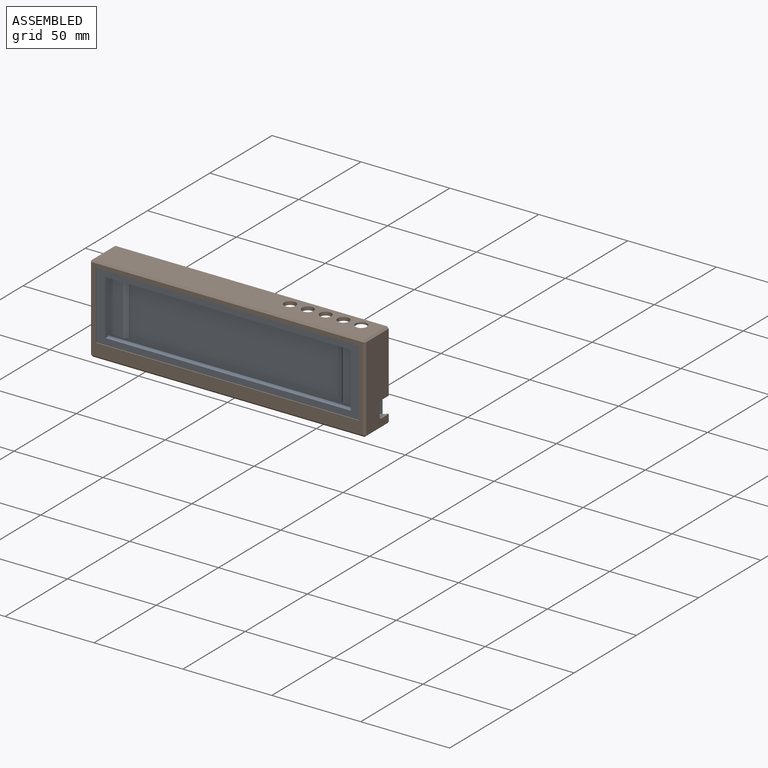
[diagram: assembled view]
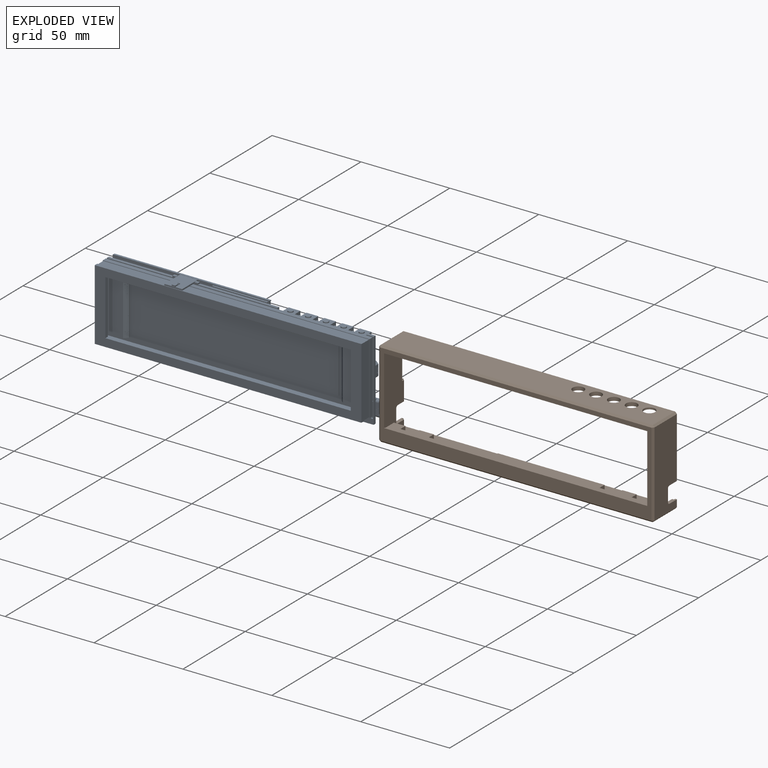
[diagram: exploded view]
GUIDED TOUR — FREECAD ASSEMBLY "CK3B-II"

This assembly has 2 components, labeled P0..P1 below (a component is one placed body or linked part; the same part can appear more than once), held together by 0 modeled joints plus 1 derived contact edge. A joint is a constraint between two components; its type names the relative motion it leaves free:
  CONTACT — a derived adjacency edge — the two components touch in the source model (clearance under 2% of the assembly's diagonal); it is measured from the geometry, not a modeled constraint.
Axis/direction vectors are unit vectors and 'through' points are millimeter coordinates, both in the assembly's world frame.

MATES
  1. CONTACT "contact_0_1": P0 <-> P1, contact direction (1.000, 0.000, 0.000) through (-75.07, 12.11, -0.88) mm (derived from contact, not a modeled constraint)

ASSEMBLY ORDER
  1. P0 — the base component [order heuristic]
  2. P1 [order heuristic]
Order-tag legend:
  [order heuristic] — this assembly is geometrically interlocked (no collision-free removal order exists), so components are listed in mate-graph order; insertion feasibility is not verified.

Of the 2 components, 1 carries a construction recipe — the FreeCAD feature program (sketches with constraints, then the solid features that consume them) that regenerates the part from scratch, quoted from this document or from the linked companion document it references; the rest are supplied as boundary geometry only. The tour below walks the components in assembly order: each is shown spotlighted twice — in the assembled view, then in the exploded view, where a leader line traces a displaced component back to its assembled socket (components that stay in place when exploded have no leader line; saturated green if recipe-attached, orange if geometry-only; every other component desaturated gray) — followed by its recipe or geometry summary and the mates that hold it.
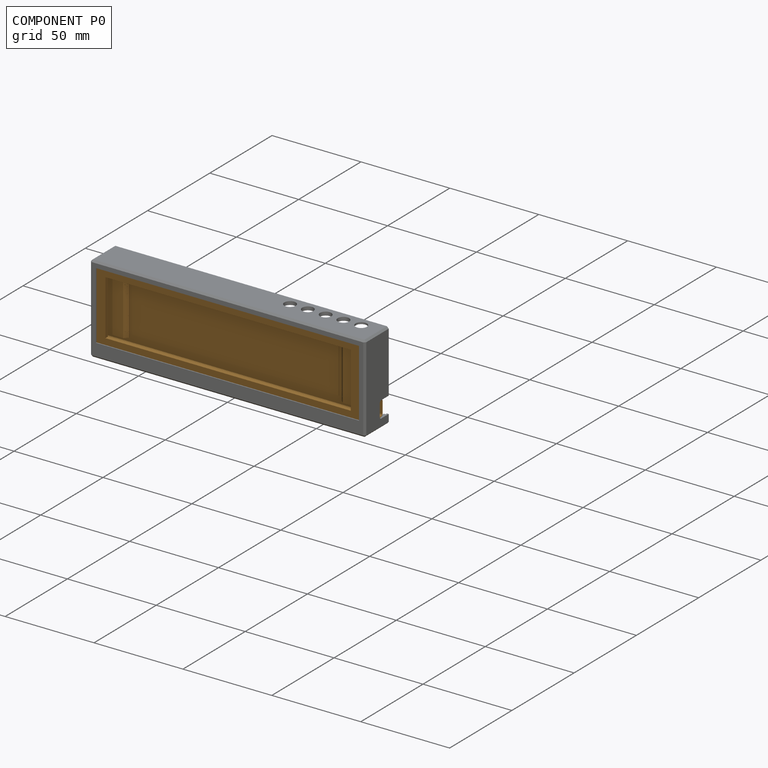
[diagram: component P0 — assembled]
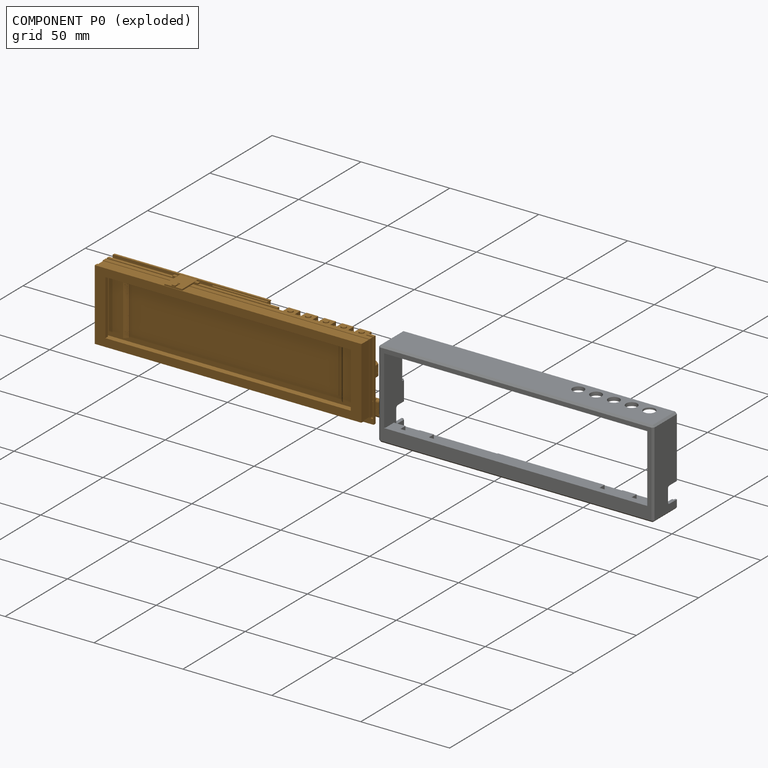
[diagram: component P0 — exploded]
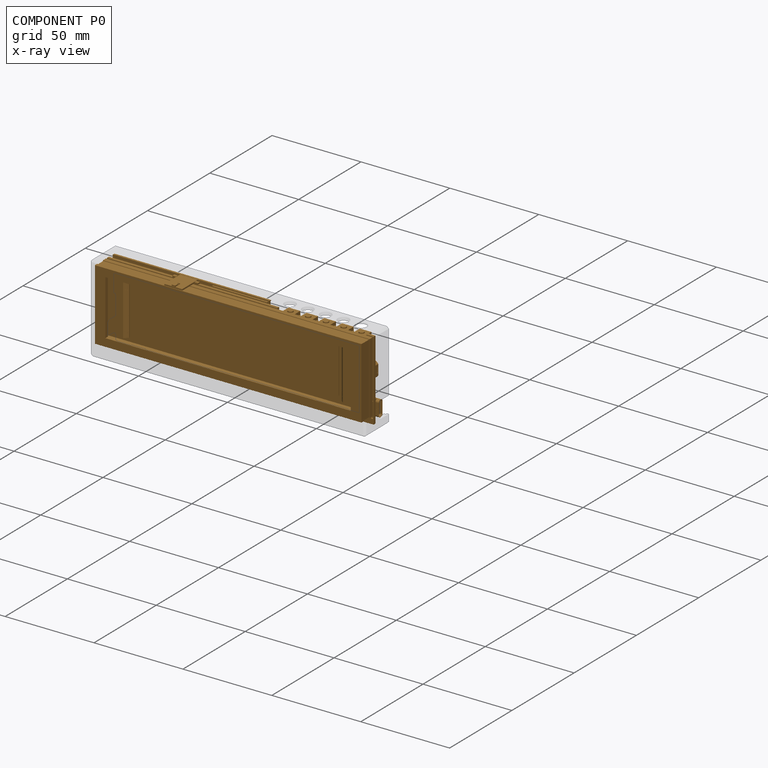
[diagram: component P0 — x-ray view]
COMPONENT P0 — geometry summary ("Electronic"; no construction recipe available for this part):
  bounding box: 153.2 x 46.3 x 19.5 mm
  tessellated surface: 1,090,920 triangles
  volume: 42087 mm^3 (30% of its bounding box)
Held by: resting contact with P1 (derived edge).
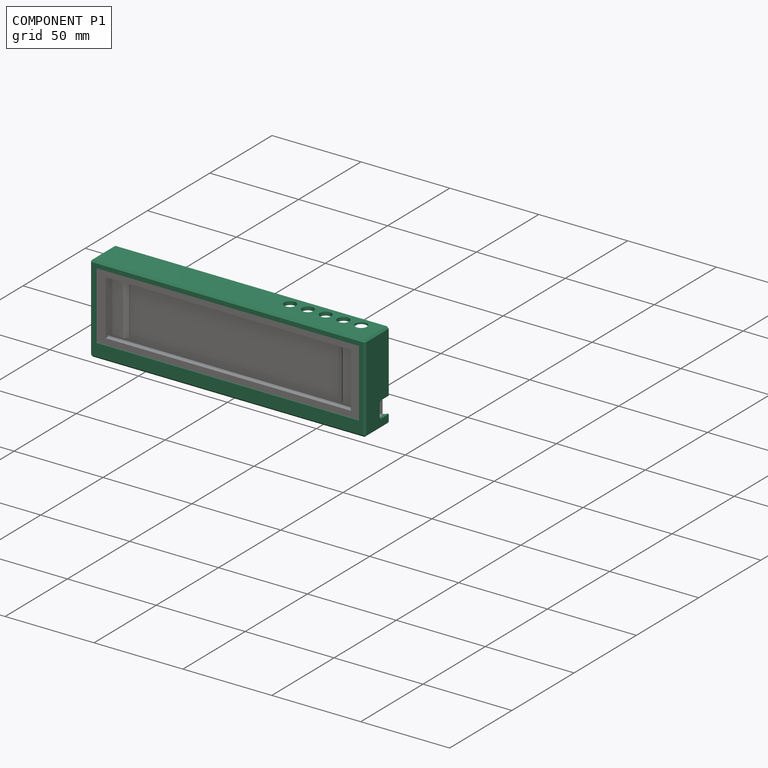
[diagram: component P1 — assembled]
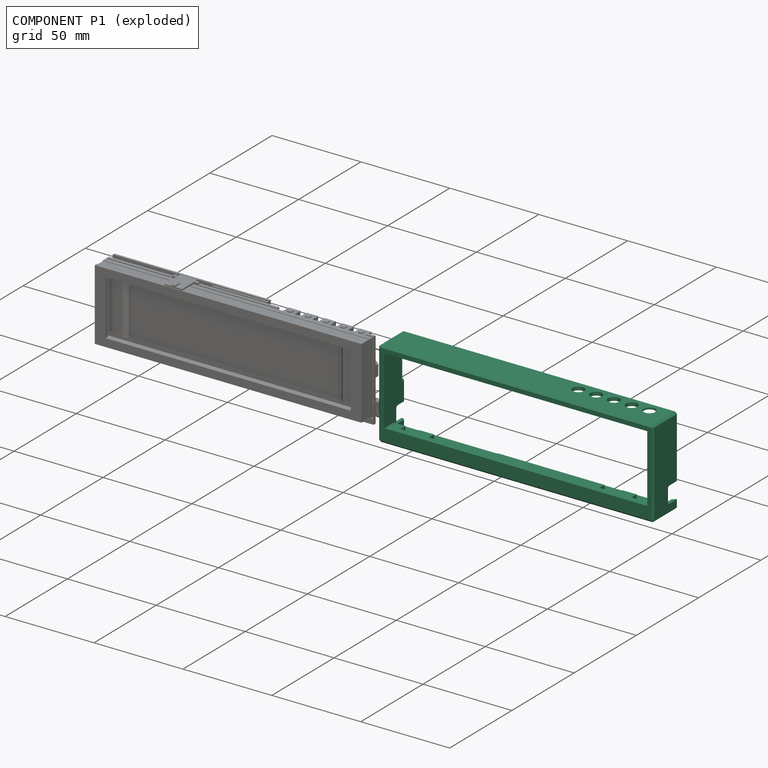
[diagram: component P1 — exploded]
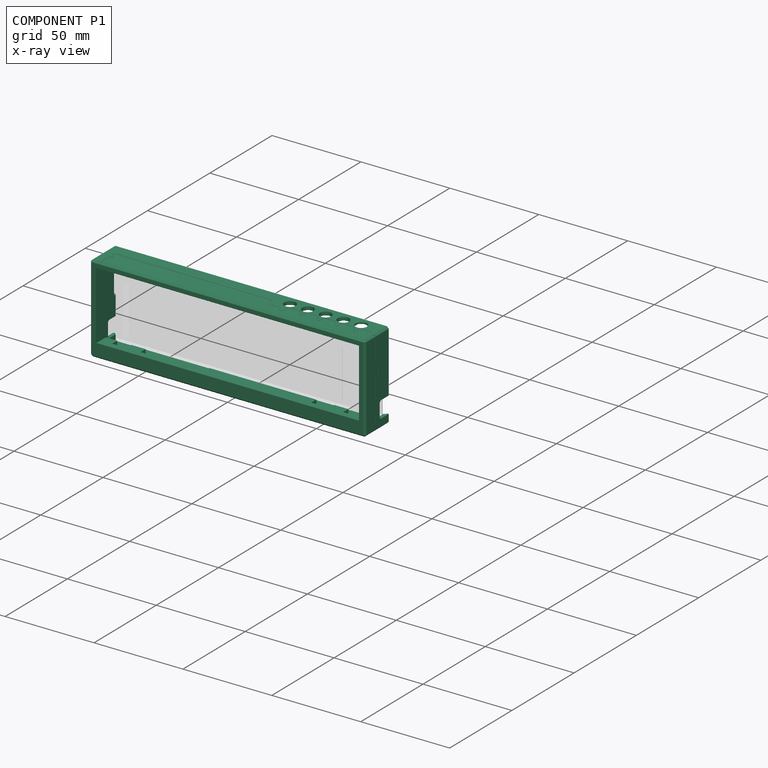
[diagram: component P1 — x-ray view]
COMPONENT P1 — recipe-attached ("Shield", modeled in this document).
Held by: resting contact with P0 (derived edge).
Construction recipe (the document's own serialized feature program — sketch geometry with constraints, then the solid features built on it; lengths are millimeters unless a unit is written):

FEATURE [Sketcher::SketchObject] Sketch001
  FullyConstrained = true
  MapMode = 5
  Placement = pos=(0,0,0) rot=(0.57735,0.57735,0.57735;2.0944rad)
  Support = -> [YZ_Plane002]
  TreeRank = 52
  sketch-geometry (5):
    g0: LineSegment StartX=19 StartY=-7 StartZ=0 EndX=19 EndY=42.4 EndZ=0
    g1: LineSegment StartX=0 StartY=42.4 StartZ=0 EndX=0 EndY=0 EndZ=0
    g2: LineSegment StartX=0 StartY=42.4 StartZ=0 EndX=19 EndY=42.4 EndZ=0
    g3: LineSegment StartX=0 StartY=0 StartZ=0 EndX=0 EndY=-7 EndZ=0
    g4: LineSegment StartX=0 StartY=-7 StartZ=0 EndX=19 EndY=-7 EndZ=0
  constraints (14):
    c: Distance(g1) = 42.4
    c: Coincident(g2,g1)
    c: Coincident(g2,g0)
    c: Horizontal(g2)
    c: Vertical(g1)
    c: Vertical(g0)
    c: Coincident(g1,g-1)
    c: DistanceX(g2,g2) = 19
    c: Coincident(g3,g1)
    c: Vertical(g3)
    c: DistanceY(g3,g3) = 7
    c: Coincident(g4,g3)
    c: Coincident(g4,g0)
    c: Horizontal(g4)
FEATURE [PartDesign::Pad] Pad  label="体"
  ClaimChildren = false
  Direction = (1,1,1)
  Fit = 0
  FitJoin = 0
  InnerFit = 0
  InnerFitJoin = 0
  InnerTaperAngle = 0
  InnerTaperAngleRev = 0
  Length = 154.8
  Length2 = 100
  Linearize = true
  Midplane = true
  NewSolid = false
  Placement = pos=(0,0,0) rot=(0.57735,0.57735,0.57735;2.0944rad)
  Profile = -> Sketch001
  Suppress = false
  TreeRank = 53
  Type = 0
  _ProfileBasedVersion = 1
FEATURE [Sketcher::SketchObject] Sketch002
  AttachmentOffset = pos=(0,0,-0.5) rot=(0,0,1;0rad)
  FullyConstrained = true
  MapMode = 5
  Placement = pos=(2e-16,0.5,-1e-16) rot=(-0.57735,-0.57735,0.57735;4.18879rad)
  Support = -> [Pad]
  TreeRank = 54
  sketch-geometry (4):
    g0: LineSegment StartX=0 StartY=75 StartZ=0 EndX=-40 EndY=75 EndZ=0
    g1: LineSegment StartX=-40 StartY=75 StartZ=0 EndX=-40 EndY=-75 EndZ=0
    g2: LineSegment StartX=-40 StartY=-75 StartZ=0 EndX=0 EndY=-75 EndZ=0
    g3: LineSegment StartX=0 StartY=-75 StartZ=0 EndX=0 EndY=75 EndZ=0
  constraints (11):
    c: Coincident(g0,g1)
    c: Vertical(g1)
    c: Coincident(g1,g2)
    c: Horizontal(g2)
    c: Coincident(g2,g3)
    c: Coincident(g3,g0)
    c: Horizontal(g0)
    c: DistanceX(g0,g0) = 40
    c: PointOnObject(g-1,g3)
    c: DistanceY(g3,g3) = 150
    c: Symmetric(g0,g2,g-1)
FEATURE [PartDesign::Pocket] Pocket  label="屏幕挖空"
  BaseFeature = -> Pad
  ClaimChildren = false
  Fit = 0
  FitJoin = 0
  InnerFit = 0
  InnerFitJoin = 0
  InnerTaperAngle = 0
  InnerTaperAngleRev = 0
  Length = 5
  Length2 = 100
  Linearize = true
  NewSolid = false
  Placement = pos=(0,0,0) rot=(0.57735,0.57735,0.57735;2.0944rad)
  Profile = -> Sketch002
  Suppress = false
  TreeRank = 55
  Type = 1
  _ProfileBasedVersion = 1
FEATURE [Sketcher::SketchObject] Sketch003
  AttachmentOffset = pos=(0,0,-6) rot=(0,0,1;0rad)
  ExternalGeometry = -> [Pocket]
  FullyConstrained = true
  MapMode = 5
  Placement = pos=(2.3e-15,6,-1e-15) rot=(-0.57735,-0.57735,0.57735;4.18879rad)
  Support = -> [Pad]
  TreeRank = 56
  sketch-geometry (24):
    g0: LineSegment StartX=0 StartY=69 StartZ=0 EndX=4 EndY=69 EndZ=0
    g1: LineSegment StartX=4 StartY=69 StartZ=0 EndX=4 EndY=61 EndZ=0
    g2: LineSegment StartX=4 StartY=61 StartZ=0 EndX=0 EndY=61 EndZ=0
    g3: LineSegment StartX=0 StartY=61 StartZ=0 EndX=0 EndY=69 EndZ=0
    g4: LineSegment StartX=0 StartY=53 StartZ=0 EndX=4 EndY=53 EndZ=0
    g5: LineSegment StartX=4 StartY=53 StartZ=0 EndX=4 EndY=43 EndZ=0
    g6: LineSegment StartX=4 StartY=43 StartZ=0 EndX=0 EndY=43 EndZ=0
    g7: LineSegment StartX=0 StartY=43 StartZ=0 EndX=0 EndY=53 EndZ=0
    g8: LineSegment StartX=0 StartY=-17 StartZ=0 EndX=4 EndY=-17 EndZ=0
    g9: LineSegment StartX=4 StartY=-17 StartZ=0 EndX=4 EndY=-53 EndZ=0
    g10: LineSegment StartX=4 StartY=-53 StartZ=0 EndX=0 EndY=-53 EndZ=0
    g11: LineSegment StartX=0 StartY=-53 StartZ=0 EndX=0 EndY=-17 EndZ=0
    g12: LineSegment StartX=0 StartY=-61 StartZ=0 EndX=4 EndY=-61 EndZ=0
    g13: LineSegment StartX=4 StartY=-61 StartZ=0 EndX=4 EndY=-69 EndZ=0
    g14: LineSegment StartX=4 StartY=-69 StartZ=0 EndX=0 EndY=-69 EndZ=0
    g15: LineSegment StartX=0 StartY=-69 StartZ=0 EndX=0 EndY=-61 EndZ=0
    g16: LineSegment StartX=-41.4 StartY=69 StartZ=0 EndX=-40 EndY=69 EndZ=0
    g17: LineSegment StartX=-40 StartY=69 StartZ=0 EndX=-40 EndY=61 EndZ=0
    g18: LineSegment StartX=-40 StartY=61 StartZ=0 EndX=-41.4 EndY=61 EndZ=0
    g19: LineSegment StartX=-41.4 StartY=61 StartZ=0 EndX=-41.4 EndY=69 EndZ=0
    g20: LineSegment StartX=-41.4 StartY=-61 StartZ=0 EndX=-40 EndY=-61 EndZ=0
    g21: LineSegment StartX=-40 StartY=-61 StartZ=0 EndX=-40 EndY=-69 EndZ=0
    g22: LineSegment StartX=-40 StartY=-69 StartZ=0 EndX=-41.4 EndY=-69 EndZ=0
    g23: LineSegment StartX=-41.4 StartY=-69 StartZ=0 EndX=-41.4 EndY=-61 EndZ=0
  constraints (72):
    c: Coincident(g0,g1)
    c: Coincident(g1,g2)
    c: Coincident(g2,g3)
    c: Coincident(g3,g0)
    c: Horizontal(g0)
    c: Horizontal(g2)
    c: Vertical(g1)
    c: Vertical(g3)
    c: PointOnObject(g-1,g3)
    c: Coincident(g4,g5)
    c: Coincident(g5,g6)
    c: Coincident(g6,g7)
    c: Coincident(g7,g4)
    c: Horizontal(g4)
    c: Horizontal(g6)
    c: Vertical(g5)
    c: Vertical(g7)
    c: Coincident(g8,g9)
    c: Coincident(g9,g10)
    c: Coincident(g10,g11)
    c: Coincident(g11,g8)
    c: Horizontal(g8)
    c: Horizontal(g10)
    c: Vertical(g9)
    c: Vertical(g11)
    c: Coincident(g12,g13)
    c: Coincident(g13,g14)
    c: Coincident(g14,g15)
    c: Coincident(g15,g12)
    c: Horizontal(g12)
    c: Horizontal(g14)
    c: Vertical(g13)
    c: Vertical(g15)
    c: PointOnObject(g-1,g11)
    c: PointOnObject(g-1,g15)
    c: PointOnObject(g-1,g7)
    c: Vertical(g1,g4)
    c: Vertical(g5,g8)
    c: Vertical(g9,g12)
    c: Distance(g0,g-3) = 6
    c: DistanceY(g3,g3) = 8
    c: DistanceY(g4,g2) = 8
    c: DistanceY(g7,g7) = 10
    c: DistanceX(g0,g0) = 4
    c: Distance(g14,g-4) = 6
    c: DistanceY(g15,g15) = 8
    c: DistanceY(g12,g10) = 8
    c: DistanceY(g11,g11) = 36
    c: Coincident(g16,g17)
    c: Coincident(g17,g18)
    c: Coincident(g18,g19)
    c: Coincident(g19,g16)
    c: Horizontal(g16)
    c: Horizontal(g18)
    c: Vertical(g17)
    c: Vertical(g19)
    c: Coincident(g20,g21)
    c: Coincident(g21,g22)
    c: Coincident(g22,g23)
    c: Coincident(g23,g20)
    c: Horizontal(g20)
    c: Horizontal(g22)
    c: Vertical(g21)
    c: Vertical(g23)
    c: PointOnObject(g16,g-5)
    c: DistanceX(g16,g16) = 1.4
    c: Horizontal(g16,g0)
    c: Horizontal(g17,g2)
    c: Vertical(g20,g17)
    c: Vertical(g20,g18)
    c: Horizontal(g20,g12)
    c: Horizontal(g21,g14)
FEATURE [Sketcher::SketchObject] Sketch004
  AttachmentOffset = pos=(0,0,-10) rot=(0,0,1;0rad)
  FullyConstrained = true
  MapMode = 5
  Placement = pos=(3.9e-15,10,-1.7e-15) rot=(-0.57735,-0.57735,0.57735;4.18879rad)
  Support = -> [Pad]
  TreeRank = 58
  sketch-geometry (4):
    g0: LineSegment StartX=0 StartY=75 StartZ=0 EndX=4.8 EndY=75 EndZ=0
    g1: LineSegment StartX=4.8 StartY=75 StartZ=0 EndX=4.8 EndY=-75 EndZ=0
    g2: LineSegment StartX=4.8 StartY=-75 StartZ=0 EndX=0 EndY=-75 EndZ=0
    g3: LineSegment StartX=0 StartY=-75 StartZ=0 EndX=0 EndY=75 EndZ=0
  constraints (11):
    c: Coincident(g0,g1)
    c: Coincident(g1,g2)
    c: Coincident(g2,g3)
    c: Coincident(g3,g0)
    c: Horizontal(g0)
    c: Horizontal(g2)
    c: Vertical(g1)
    c: PointOnObject(g-1,g3)
    c: Symmetric(g0,g2,g-1)
    c: DistanceY(g3,g3) = 150
    c: DistanceX(g0,g0) = 4.8
FEATURE [Sketcher::SketchObject] Sketch005
  ExternalGeometry = -> [Pocket]
  FullyConstrained = true
  MapMode = 5
  Placement = pos=(2e-16,0.5,-1e-16) rot=(0.57735,0.57735,0.57735;4.18879rad)
  Support = -> [Pocket]
  TreeRank = 60
  sketch-geometry (4):
    g0: LineSegment StartX=1 StartY=74 StartZ=0 EndX=39 EndY=74 EndZ=0
    g1: LineSegment StartX=39 StartY=74 StartZ=0 EndX=39 EndY=-74 EndZ=0
    g2: LineSegment StartX=39 StartY=-74 StartZ=0 EndX=1 EndY=-74 EndZ=0
    g3: LineSegment StartX=1 StartY=-74 StartZ=0 EndX=1 EndY=74 EndZ=0
  constraints (12):
    c: Coincident(g0,g1)
    c: Coincident(g1,g2)
    c: Coincident(g2,g3)
    c: Coincident(g3,g0)
    c: Horizontal(g0)
    c: Horizontal(g2)
    c: Vertical(g1)
    c: Vertical(g3)
    c: Distance(g0,g-3) = 1
    c: DistanceX(g-2,g0) = 1
    c: Distance(g1,g-5) = 1
    c: Distance(g1,g-4) = 1
FEATURE [PartDesign::Pocket] Pocket003  label="屏幕正面挖空"
  BaseFeature = -> Pocket
  ClaimChildren = false
  Fit = 0
  FitJoin = 0
  InnerFit = 0
  InnerFitJoin = 0
  InnerTaperAngle = 0
  InnerTaperAngleRev = 0
  Length = 5
  Length2 = 100
  Linearize = true
  NewSolid = false
  Placement = pos=(0,0,0) rot=(0.57735,0.57735,0.57735;2.0944rad)
  Profile = -> Sketch005
  Suppress = false
  TreeRank = 61
  Type = 1
  _ProfileBasedVersion = 1
FEATURE [Sketcher::SketchObject] Sketch007
  FullyConstrained = true
  MapMode = 5
  Placement = pos=(0,0,0) rot=(0.57735,0.57735,0.57735;2.0944rad)
  Support = -> [YZ_Plane002]
  TreeRank = 64
  sketch-geometry (7):
    g0: LineSegment StartX=13 StartY=7.35 StartZ=0 EndX=21.8 EndY=7.35 EndZ=0
    g1: LineSegment StartX=21.8 StartY=7.35 StartZ=0 EndX=21.8 EndY=-1.95 EndZ=0
    g2: LineSegment StartX=21.8 StartY=-1.95 StartZ=0 EndX=13 EndY=-1.95 EndZ=0
    g3: LineSegment StartX=11.8 StartY=6.15 StartZ=0 EndX=11.8 EndY=-0.75 EndZ=0
    g4: ArcOfCircle CenterX=13 CenterY=6.15 CenterZ=0 NormalX=0 NormalY=0 NormalZ=1 AngleXU=0 Radius=1.2 StartAngle=1.5708 EndAngle=3.14159
    g5: ArcOfCircle CenterX=13 CenterY=-0.75 CenterZ=0 NormalX=0 NormalY=0 NormalZ=1 AngleXU=0 Radius=1.2 StartAngle=3.14159 EndAngle=4.71239
    g6: GeomPoint [constr] X=21.8 Y=2.7 Z=0
  constraints (17):
    c: Horizontal(g0)
    c: Coincident(g0,g1)
    c: Vertical(g1)
    c: Coincident(g1,g2)
    c: Horizontal(g2)
    c: Vertical(g3)
    c: Tangent(g5,g3) = -1.5708
    c: Tangent(g4,g0) = 1.5708
    c: Tangent(g5,g2) = 1.5708
    c: Tangent(g4,g3) = -1.5708
    c: Equal(g4,g5)
    c: DistanceY(g1,g1) = 9.3
    c: Radius(g4) = 1.2
    c: Distance(g-1,g3) = 11.8
    c: Symmetric(g0,g1,g6)
    c: DistanceY(g-1,g6) = 2.7
    c: Distance(g1,g3) = 10
FEATURE [Sketcher::SketchObject] Sketch010
  ExternalGeometry = -> [Pocket]
  FullyConstrained = true
  MapMode = 5
  Placement = pos=(-4.4e-15,1.56e-14,40) rot=(0.707107,0.707107,0;3.14159rad)
  Support = -> [Pocket]
  TreeRank = 70
  sketch-geometry (5):
    g0: Circle CenterX=13.2 CenterY=66 CenterZ=0 NormalX=0 NormalY=0 NormalZ=1 AngleXU=0 Radius=3.2
    g1: Circle CenterX=13.2 CenterY=56 CenterZ=0 NormalX=0 NormalY=0 NormalZ=1 AngleXU=0 Radius=3.2
    g2: Circle CenterX=13.2 CenterY=46 CenterZ=0 NormalX=0 NormalY=0 NormalZ=1 AngleXU=0 Radius=3.2
    g3: Circle CenterX=13.2 CenterY=36 CenterZ=0 NormalX=0 NormalY=0 NormalZ=1 AngleXU=0 Radius=3.2
    g4: Circle CenterX=13.2 CenterY=26 CenterZ=0 NormalX=0 NormalY=0 NormalZ=1 AngleXU=0 Radius=3.2
  constraints (15):
    c: Distance(g0,g-3) = 9
    c: DistanceX(g-2,g0) = 13.2
    c: Diameter(g0) = 6.4
    c: Equal(g0,g1)
    c: Equal(g1,g2)
    c: Equal(g2,g3)
    c: Equal(g3,g4)
    c: Vertical(g0,g1)
    c: Vertical(g1,g2)
    c: Vertical(g2,g3)
    c: Vertical(g3,g4)
    c: DistanceY(g1,g0) = 10
    c: DistanceY(g2,g1) = 10
    c: DistanceY(g3,g2) = 10
    c: DistanceY(g4,g3) = 10
FEATURE [Sketcher::SketchObject] Sketch016
  FullyConstrained = true
  MapMode = 5
  Placement = pos=(-77.4,1.7e-14,-1.7e-14) rot=(0.57735,0.57735,-0.57735;4.18879rad)
  Support = -> [Pad]
  TreeRank = 108
  sketch-geometry (4):
    g0: LineSegment StartX=16.6 StartY=-18.2 StartZ=0 EndX=21.6 EndY=-18.2 EndZ=0
    g1: LineSegment StartX=21.6 StartY=-18.2 StartZ=0 EndX=21.6 EndY=-30.2 EndZ=0
    g2: LineSegment StartX=21.6 StartY=-30.2 StartZ=0 EndX=16.6 EndY=-30.2 EndZ=0
    g3: LineSegment StartX=16.6 StartY=-30.2 StartZ=0 EndX=16.6 EndY=-18.2 EndZ=0
  constraints (12):
    c: Coincident(g0,g1)
    c: Coincident(g1,g2)
    c: Coincident(g2,g3)
    c: Coincident(g3,g0)
    c: Horizontal(g0)
    c: Horizontal(g2)
    c: Vertical(g1)
    c: Vertical(g3)
    c: DistanceY(g-1,g0) = -18.2
    c: DistanceX(g-1,g0) = 16.6
    c: DistanceX(g2,g2) = 5
    c: DistanceY(g1,g1) = 12
FEATURE [Sketcher::SketchObject] Sketch021
  ExternalGeometry = -> [Pocket]
  FullyConstrained = true
  MapMode = 5
  Placement = pos=(2e-16,0.5,-1e-16) rot=(0.57735,0.57735,0.57735;4.18879rad)
  Support = -> [Pocket]
  TreeRank = 131
  sketch-geometry (4):
    g0: LineSegment StartX=-0.4 StartY=75.4 StartZ=0 EndX=40.4 EndY=75.4 EndZ=0
    g1: LineSegment StartX=40.4 StartY=75.4 StartZ=0 EndX=40.4 EndY=-75.4 EndZ=0
    g2: LineSegment StartX=40.4 StartY=-75.4 StartZ=0 EndX=-0.4 EndY=-75.4 EndZ=0
    g3: LineSegment StartX=-0.4 StartY=-75.4 StartZ=0 EndX=-0.4 EndY=75.4 EndZ=0
  constraints (12):
    c: Coincident(g0,g1)
    c: Coincident(g1,g2)
    c: Coincident(g2,g3)
    c: Coincident(g3,g0)
    c: Horizontal(g0)
    c: Horizontal(g2)
    c: Vertical(g1)
    c: Vertical(g3)
    c: DistanceX(g-2,g2) = -0.4
    c: Distance(g2,g-5) = 0.4
    c: Distance(g0,g-3) = 0.4
    c: Distance(g0,g-4) = 0.4
FEATURE [PartDesign::Pocket] Pocket018  label="屏幕挖空补偿"
  BaseFeature = -> Pocket003
  ClaimChildren = false
  Fit = 0
  FitJoin = 0
  InnerFit = 0
  InnerFitJoin = 0
  InnerTaperAngle = 0
  InnerTaperAngleRev = 0
  Length = 5
  Length2 = 100
  Linearize = true
  NewSolid = false
  Placement = pos=(0,0,0) rot=(0.57735,0.57735,0.57735;2.0944rad)
  Profile = -> Sketch021
  Reversed = true
  Suppress = false
  TreeRank = 132
  Type = 1
  _ProfileBasedVersion = 1
FEATURE [PartDesign::Pocket] Pocket001  label="屏幕引线"
  BaseFeature = -> Pocket018
  ClaimChildren = false
  Fit = 0
  FitJoin = 0
  InnerFit = 0
  InnerFitJoin = 0
  InnerTaperAngle = 0
  InnerTaperAngleRev = 0
  Length = 5
  Length2 = 100
  Linearize = true
  NewSolid = false
  Placement = pos=(0,0,0) rot=(0.57735,0.57735,0.57735;2.0944rad)
  Profile = -> Sketch003
  Suppress = false
  TreeRank = 57
  Type = 1
  _ProfileBasedVersion = 1
FEATURE [Sketcher::SketchObject] Sketch006
  AttachmentOffset = pos=(0,0,0.4) rot=(0,0,1;0rad)
  ExternalGeometry = -> [Pocket,Pocket018]
  FullyConstrained = true
  MapMode = 5
  Placement = pos=(4e-16,0.9,-2e-16) rot=(0.57735,0.57735,0.57735;4.18879rad)
  Support = -> [Pocket]
  TreeRank = 62
  sketch-geometry (5):
    g0: LineSegment StartX=41.4 StartY=-39 StartZ=0 EndX=40.4 EndY=-39 EndZ=0
    g1: LineSegment StartX=40.4 StartY=-39 StartZ=0 EndX=40.4 EndY=-23 EndZ=0
    g2: LineSegment StartX=40.4 StartY=-23 StartZ=0 EndX=41.4 EndY=-23 EndZ=0
    g3: GeomPoint [constr] X=40.4 Y=-31 Z=0
    g4: LineSegment StartX=41.4 StartY=-23 StartZ=0 EndX=41.4 EndY=-39 EndZ=0
  constraints (13):
    c: Coincident(g0,g1)
    c: Coincident(g1,g2)
    c: Horizontal(g0)
    c: Horizontal(g2)
    c: Vertical(g1)
    c: DistanceX(g2,g2) = 1
    c: DistanceY(g0,g2) = 16
    c: Distance(g3,g-4) = 44
    c: Symmetric(g0,g1,g3)
    c: Coincident(g2,g4)
    c: Vertical(g4)
    c: PointOnObject(g3,g-5)
    c: Coincident(g4,g0)
FEATURE [PartDesign::Chamfer] Chamfer  label="引线补强倒角"
  Angle = 45
  Base = -> Pocket001 [Edge96,Edge91,Edge86,Edge81]
  BaseFeature = -> Pocket001
  ChamferType = 1
  FlipDirection = false
  NewSolid = false
  Placement = pos=(0,0,0) rot=(0.57735,0.57735,0.57735;2.0944rad)
  Size = 2
  Size2 = 1
  SupportTransform = false
  Suppress = false
  TreeRank = 101
FEATURE [PartDesign::Pocket] Pocket002  label="主板位"
  BaseFeature = -> Chamfer
  ClaimChildren = false
  Fit = 0
  FitJoin = 0
  InnerFit = 0
  InnerFitJoin = 0
  InnerTaperAngle = 0
  InnerTaperAngleRev = 0
  Length = 5
  Length2 = 100
  Linearize = true
  NewSolid = false
  Placement = pos=(0,0,0) rot=(0.57735,0.57735,0.57735;2.0944rad)
  Profile = -> Sketch004
  Suppress = false
  TreeRank = 59
  Type = 1
  _ProfileBasedVersion = 1
FEATURE [Sketcher::SketchObject] Sketch022
  ExternalGeometry = -> [Pocket002]
  FullyConstrained = true
  MapMode = 5
  Placement = pos=(4.4e-15,10,-5.2e-15) rot=(0.57735,0.57735,0.57735;4.18879rad)
  Support = -> [Pocket002]
  TreeRank = 133
  sketch-geometry (4):
    g0: LineSegment StartX=-5.2 StartY=75.4 StartZ=0 EndX=0 EndY=75.4 EndZ=0
    g1: LineSegment StartX=0 StartY=75.4 StartZ=0 EndX=0 EndY=-75.4 EndZ=0
    g2: LineSegment StartX=0 StartY=-75.4 StartZ=0 EndX=-5.2 EndY=-75.4 EndZ=0
    g3: LineSegment StartX=-5.2 StartY=-75.4 StartZ=0 EndX=-5.2 EndY=75.4 EndZ=0
  constraints (11):
    c: Coincident(g0,g1)
    c: Coincident(g1,g2)
    c: Coincident(g2,g3)
    c: Coincident(g3,g0)
    c: Horizontal(g0)
    c: Horizontal(g2)
    c: Vertical(g1)
    c: Vertical(g3)
    c: Symmetric(g1,g0,g-1)
    c: Distance(g0,g-4) = 0.4
    c: Distance(g0,g-3) = 0.4
FEATURE [PartDesign::Pocket] Pocket019  label="主板位补偿"
  BaseFeature = -> Pocket002
  ClaimChildren = false
  Fit = 0
  FitJoin = 0
  InnerFit = 0
  InnerFitJoin = 0
  InnerTaperAngle = 0
  InnerTaperAngleRev = 0
  Length = 5
  Length2 = 100
  Linearize = true
  NewSolid = false
  Placement = pos=(0,0,0) rot=(0.57735,0.57735,0.57735;2.0944rad)
  Profile = -> Sketch022
  Reversed = true
  Suppress = false
  TreeRank = 134
  Type = 1
  _ProfileBasedVersion = 1
FEATURE [PartDesign::Pocket] Pocket004  label="光传感器"
  BaseFeature = -> Pocket019
  ClaimChildren = false
  Fit = 0
  FitJoin = 0
  InnerFit = 0
  InnerFitJoin = 0
  InnerTaperAngle = 0
  InnerTaperAngleRev = 0
  Length = 0
  Length2 = 100
  Linearize = true
  NewSolid = false
  Offset = -1
  Placement = pos=(0,0,0) rot=(0.57735,0.57735,0.57735;2.0944rad)
  Profile = -> Sketch006
  Reversed = true
  Suppress = false
  TreeRank = 63
  Type = 3
  UpToFace = -> Pad [Face1]
  _ProfileBasedVersion = 1
FEATURE [Sketcher::SketchObject] Sketch008
  AttachmentOffset = pos=(0,0,-1) rot=(0,0,1;0rad)
  ExternalGeometry = -> [Pocket018,Pocket019]
  FullyConstrained = true
  MapMode = 5
  Placement = pos=(8e-15,18,-4e-15) rot=(0.57735,0.57735,0.57735;4.18879rad)
  Support = -> [Pad]
  TreeRank = 66
  sketch-geometry (4):
    g0: LineSegment StartX=41.4 StartY=76.4 StartZ=0 EndX=-6.2 EndY=76.4 EndZ=0
    g1: LineSegment StartX=-6.2 StartY=76.4 StartZ=0 EndX=-6.2 EndY=-76.4 EndZ=0
    g2: LineSegment StartX=-6.2 StartY=-76.4 StartZ=0 EndX=41.4 EndY=-76.4 EndZ=0
    g3: LineSegment StartX=41.4 StartY=-76.4 StartZ=0 EndX=41.4 EndY=76.4 EndZ=0
  constraints (12):
    c: Coincident(g0,g1)
    c: Coincident(g1,g2)
    c: Coincident(g2,g3)
    c: Coincident(g3,g0)
    c: Horizontal(g0)
    c: Horizontal(g2)
    c: Vertical(g1)
    c: Vertical(g3)
    c: Distance(g2,g-5) = 1
    c: Distance(g2,g-3) = 1
    c: Distance(g0,g-6) = 1
    c: Distance(g0,g-7) = 1
FEATURE [Sketcher::SketchObject] Sketch020
  ExternalGeometry = -> [Pocket004]
  FullyConstrained = true
  MapMode = 5
  Placement = pos=(-1.38e-14,2.07e-14,41.4) rot=(0.707107,0.707107,0;3.14159rad)
  Support = -> [Pocket004]
  TreeRank = 135
  sketch-geometry (5):
    g0: LineSegment StartX=0.9 StartY=-29.5 StartZ=0 EndX=5.9 EndY=-29.5 EndZ=0
    g1: LineSegment StartX=5.9 StartY=-29.5 StartZ=0 EndX=5.9 EndY=-32.5 EndZ=0
    g2: LineSegment StartX=5.9 StartY=-32.5 StartZ=0 EndX=0.9 EndY=-32.5 EndZ=0
    g3: GeomPoint [constr] X=0.9 Y=-31 Z=0
    g4: LineSegment StartX=0.9 StartY=-29.5 StartZ=0 EndX=0.9 EndY=-32.5 EndZ=0
  constraints (12):
    c: Horizontal(g0)
    c: Coincident(g0,g1)
    c: Vertical(g1)
    c: Coincident(g1,g2)
    c: Horizontal(g2)
    c: DistanceX(g0,g0) = 5
    c: Symmetric(g2,g0,g3)
    c: Coincident(g4,g0)
    c: Coincident(g4,g2)
    c: Vertical(g4)
    c: Distance(g4) = 3
    c: Symmetric(g-3,g-3,g3)
FEATURE [PartDesign::Pocket] Pocket017  label="光传感器元件高度"
  BaseFeature = -> Pocket004
  ClaimChildren = false
  Fit = 0
  FitJoin = 0
  InnerFit = 0
  InnerFitJoin = 0
  InnerTaperAngle = 0
  InnerTaperAngleRev = 0
  Length = 0.2
  Length2 = 100
  Linearize = true
  NewSolid = false
  Placement = pos=(0,0,0) rot=(0.57735,0.57735,0.57735;2.0944rad)
  Profile = -> Sketch020
  Suppress = false
  TreeRank = 118
  Type = 0
  _ProfileBasedVersion = 1
FEATURE [PartDesign::Pocket] Pocket005  label="USB"
  BaseFeature = -> Pocket017
  ClaimChildren = false
  Fit = 0
  FitJoin = 0
  InnerFit = 0
  InnerFitJoin = 0
  InnerTaperAngle = 0
  InnerTaperAngleRev = 0
  Length = 5
  Length2 = 100
  Linearize = true
  Midplane = true
  NewSolid = false
  Placement = pos=(0,0,0) rot=(0.57735,0.57735,0.57735;2.0944rad)
  Profile = -> Sketch007
  Suppress = false
  TreeRank = 65
  Type = 1
  _ProfileBasedVersion = 1
FEATURE [PartDesign::Pocket] Pocket012  label="TF"
  BaseFeature = -> Pocket005
  ClaimChildren = false
  Fit = 0
  FitJoin = 0
  InnerFit = 0
  InnerFitJoin = 0
  InnerTaperAngle = 0
  InnerTaperAngleRev = 0
  Length = 10
  Length2 = 100
  Linearize = true
  NewSolid = false
  Placement = pos=(0,0,0) rot=(0.57735,0.57735,0.57735;2.0944rad)
  Profile = -> Sketch016
  Suppress = false
  TreeRank = 109
  Type = 0
  _ProfileBasedVersion = 1
FEATURE [PartDesign::Pocket] Pocket006  label="盖板沉入"
  BaseFeature = -> Pocket012
  ClaimChildren = false
  Fit = 0
  FitJoin = 0
  InnerFit = 0
  InnerFitJoin = 0
  InnerTaperAngle = 0
  InnerTaperAngleRev = 0
  Length = 5
  Length2 = 100
  Linearize = true
  NewSolid = false
  Placement = pos=(0,0,0) rot=(0.57735,0.57735,0.57735;2.0944rad)
  Profile = -> Sketch008
  Reversed = true
  Suppress = false
  TreeRank = 67
  Type = 1
  _ProfileBasedVersion = 1
FEATURE [PartDesign::Pocket] Pocket008  label="按钮"
  BaseFeature = -> Pocket006
  ClaimChildren = false
  Fit = 0
  FitJoin = 0
  InnerFit = 0
  InnerFitJoin = 0
  InnerTaperAngle = 0
  InnerTaperAngleRev = 0
  Length = 5
  Length2 = 100
  Linearize = true
  NewSolid = false
  Placement = pos=(0,0,0) rot=(0.57735,0.57735,0.57735;2.0944rad)
  Profile = -> Sketch010
  Suppress = false
  TreeRank = 71
  Type = 1
  _ProfileBasedVersion = 1
FEATURE [PartDesign::Chamfer] Chamfer001  label="正面倒角"
  Angle = 45
  Base = -> Pocket008 [Edge224,Edge225,Edge251,Edge252,Edge270,Edge255,Edge222,Edge272]
  BaseFeature = -> Pocket008
  ChamferType = 0
  FlipDirection = false
  NewSolid = false
  Placement = pos=(0,0,0) rot=(0.57735,0.57735,0.57735;2.0944rad)
  Size = 1
  Size2 = 1
  SupportTransform = false
  Suppress = false
  TreeRank = 102
FEATURE [PartDesign::Chamfer] Chamfer002  label="盖板优化倒角"
  Angle = 45
  Base = -> Chamfer001 [Edge84,Edge94,Edge131,Edge129]
  BaseFeature = -> Chamfer001
  ChamferType = 0
  FlipDirection = false
  NewSolid = false
  Placement = pos=(0,0,0) rot=(0.57735,0.57735,0.57735;2.0944rad)
  Size = 0.5
  Size2 = 1
  SupportTransform = false
  Suppress = false
  TreeRank = 103
FEATURE [PartDesign::Body] Body001  label="外框"
  AutoGroupSolids = false
  ClaimAllChildren = false
  ExportMode = 0
  Group = -> [Sketch001,Pad,Sketch002,Sketch003,Sketch004,Sketch008,Sketch016,Pocket,Sketch005,Sketch006,Sketch010,Pocket003,Sketch021,Pocket018,Pocket001,Chamfer,Pocket002,Sketch022,Pocket019,Pocket004,Sketch007,Sketch020,Pocket017,Pocket005,Pocket012,Pocket006,Pocket008,Chamfer001,Chamfer002]
  Origin = -> Origin005
  Tip = -> Chamfer002
  TreeRank = 51
  _ExportChildren = -> [Pad,Pocket,Pocket003,Pocket018,Pocket001,Chamfer,Pocket002,Pocket019,Pocket004,Pocket017,Pocket005,Pocket012,Pocket006,Pocket008,Chamfer001,Chamfer002]
  _GroupVersion = 1
PROVENANCE & LICENSES
Assembly and component geometry: a FreeCAD (.FCStd) document from a public repository crawl; components, placements and joints were extracted with FreeCAD and each solid tessellated.
Construction recipes: the document's own serialized feature recipes (and, for linked parts, the recipes of companion documents from the same project).
License: as declared in the source repository (recorded in the dataset sidecar).
Joints: native FreeCAD joints and A2plus constraints are mapped to standard mate types; edges marked 'derived from contact' connect touching components and are measured from the geometry, not modeled.
Verification: 1 of this assembly's 2 components carries a construction recipe (1 from this document itself); the rest are geometry-only. Every component's tessellation passed the extraction mesh gates (mesh-volume checksum against the B-rep where available, bounding-box inflation <= 2%).
Renders: orthographic iso camera (az 35 / el 25); the floor grid conveys scale (grid pitch printed in each image; no ruler). In the exploded view each component is displaced by its stored offset vector: the offsets alone carry the explosion direction (mate normal/axis signs are not orientation cues and do not encode it), and separation distances are assigned per mate-chain, not proportionally to assembly-order depth.
